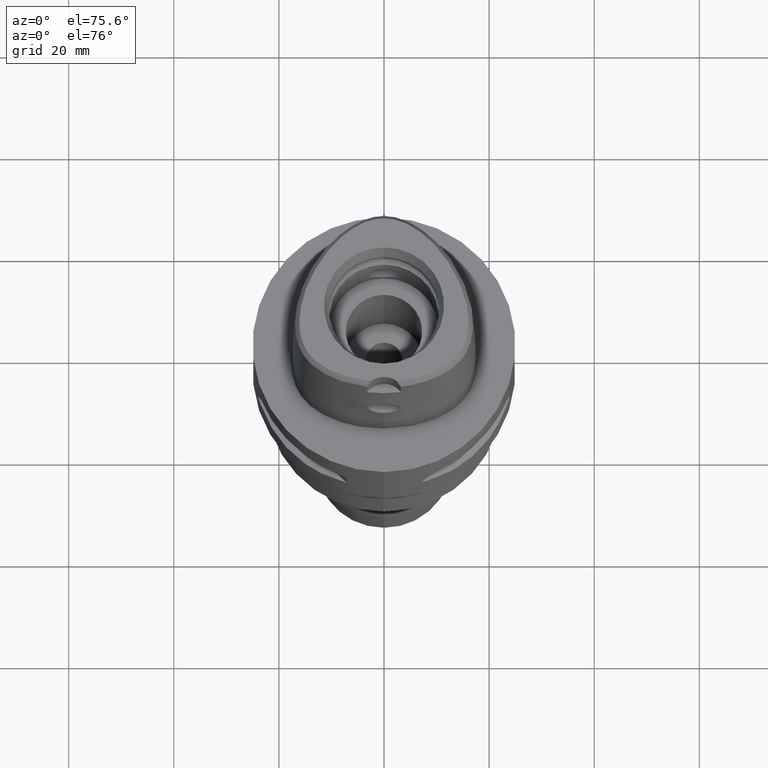
[diagram: clean part render]
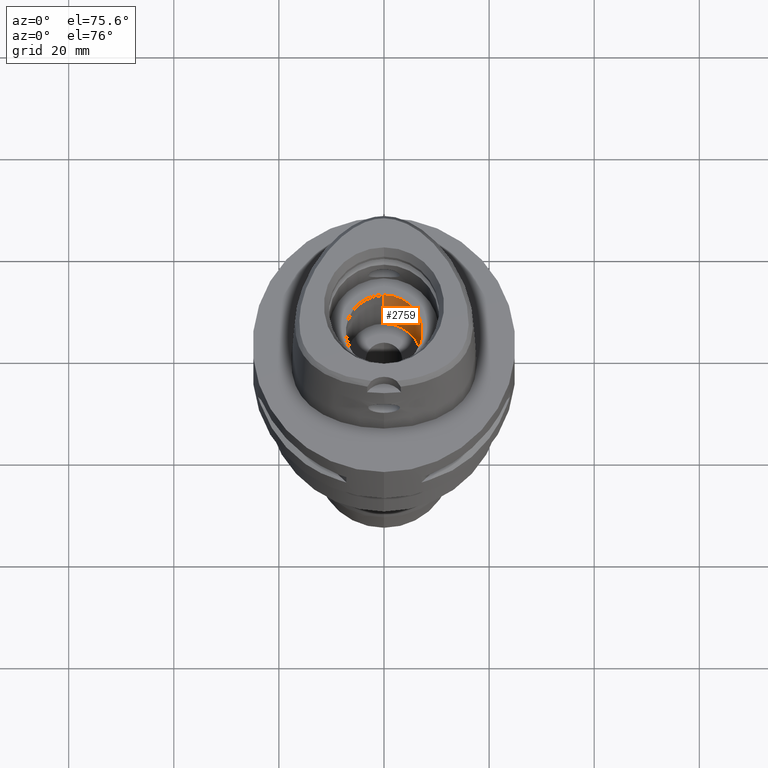
[diagram: same view with one face highlighted and labeled with its STEP entity id]
A machine part, auxiliary view. The second image highlights one B-rep face of the part: STEP entity #2759.
In plain terms, the highlighted cylindrical surface (partial cylindrical patch) has radius 7.25 mm, axis along (0, 0, -1).
Its self-contained STEP definition (entity closure, byte-faithful):
#802=CARTESIAN_POINT('',(0.E0,1.610410540879E-14,-1.2E1));
#803=DIRECTION('',(0.E0,0.E0,-1.E0));
#804=DIRECTION('',(0.E0,1.E0,0.E0));
#805=AXIS2_PLACEMENT_3D('',#802,#803,#804);
#826=DIRECTION('',(0.E0,0.E0,-1.E0));
#827=VECTOR('',#826,2.2E1);
#828=CARTESIAN_POINT('',(0.E0,-7.25E0,1.E1));
#829=LINE('',#828,#827);
#833=DIRECTION('',(0.E0,0.E0,1.E0));
#834=VECTOR('',#833,2.2E1);
#835=CARTESIAN_POINT('',(0.E0,7.25E0,-1.2E1));
#836=LINE('',#835,#834);
#864=CARTESIAN_POINT('',(0.E0,1.610410540879E-14,1.E1));
#865=DIRECTION('',(0.E0,0.E0,1.E0));
#866=DIRECTION('',(0.E0,-1.E0,0.E0));
#867=AXIS2_PLACEMENT_3D('',#864,#865,#866);
#1650=CARTESIAN_POINT('',(0.E0,-7.25E0,-1.2E1));
#1651=CARTESIAN_POINT('',(0.E0,7.25E0,-1.2E1));
#1652=VERTEX_POINT('',#1650);
#1653=VERTEX_POINT('',#1651);
#1654=CARTESIAN_POINT('',(0.E0,7.25E0,1.E1));
#1655=VERTEX_POINT('',#1654);
#1656=CARTESIAN_POINT('',(0.E0,-7.25E0,1.E1));
#1657=VERTEX_POINT('',#1656);
#2747=CARTESIAN_POINT('',(0.E0,1.610410540879E-14,3.15E1));
#2748=DIRECTION('',(0.E0,0.E0,-1.E0));
#2749=DIRECTION('',(0.E0,-1.E0,0.E0));
#2750=AXIS2_PLACEMENT_3D('',#2747,#2748,#2749);
#2751=CYLINDRICAL_SURFACE('',#2750,7.25E0);
#2752=ORIENTED_EDGE('',*,*,#2740,.T.);
#2753=ORIENTED_EDGE('',*,*,#2723,.F.);
#2754=ORIENTED_EDGE('',*,*,#2737,.T.);
#2756=ORIENTED_EDGE('',*,*,#2755,.F.);
#2757=EDGE_LOOP('',(#2752,#2753,#2754,#2756));
#2758=FACE_OUTER_BOUND('',#2757,.F.);
#806=CIRCLE('',#805,7.25E0);
#868=CIRCLE('',#867,7.25E0);
#2723=EDGE_CURVE('',#1653,#1652,#806,.T.);
#2737=EDGE_CURVE('',#1653,#1655,#836,.T.);
#2740=EDGE_CURVE('',#1657,#1652,#829,.T.);
#2755=EDGE_CURVE('',#1657,#1655,#868,.T.);
#2759=ADVANCED_FACE('',(#2758),#2751,.F.);